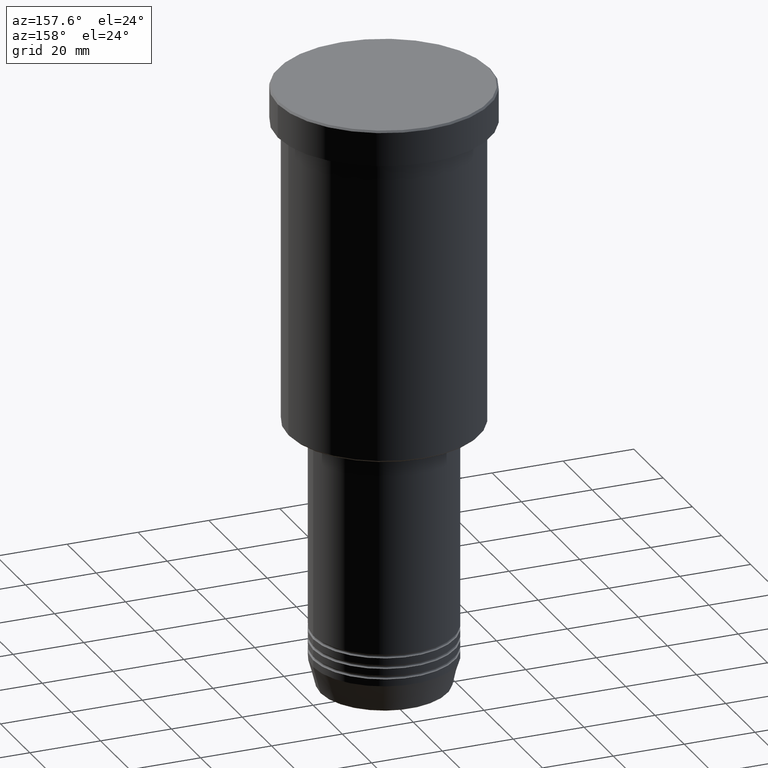
[diagram: clean part render]
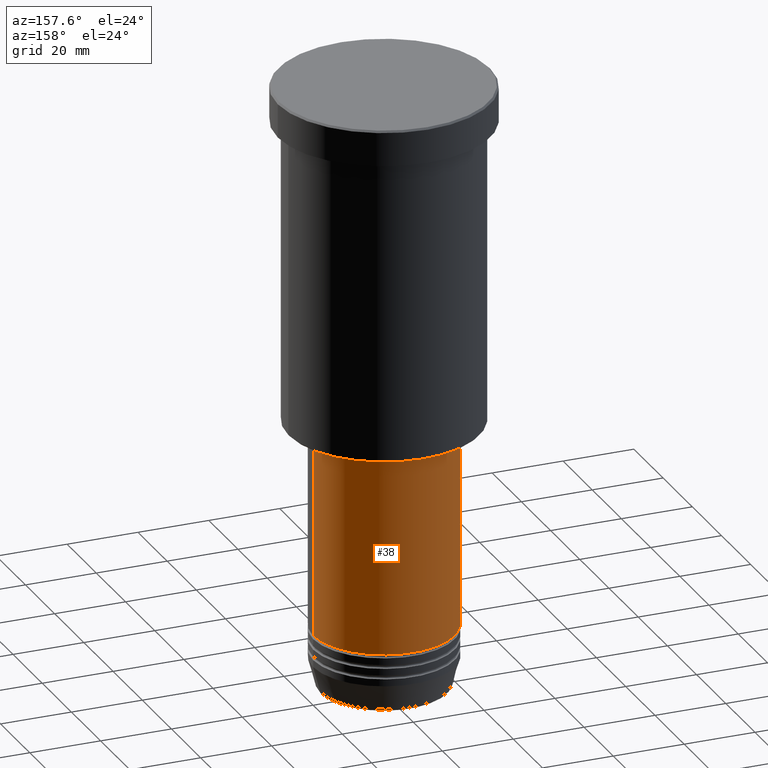
[diagram: same view with one face highlighted and labeled with its STEP entity id]
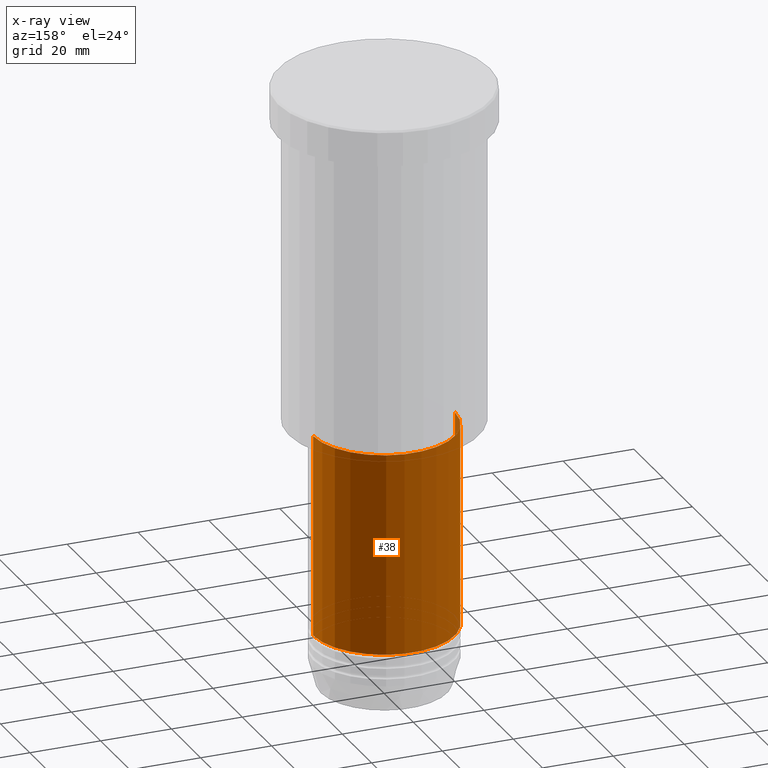
[diagram: x-ray of the same camera — body ghosted, the highlighted face saturated]
A machine part, auxiliary view. The second image highlights one B-rep face of the part: STEP entity #38.
The next image is the same camera in x-ray: the body ghosted, the highlighted face saturated — about 0% of this face is hidden behind the body in this view.
In plain terms, the highlighted cylindrical surface (partial cylindrical patch) has radius 20 mm, axis along (-0, -0, 1).
Its self-contained STEP definition (entity closure, byte-faithful):
#38 = ADVANCED_FACE ( 'NONE', ( #49 ), #608, .T. ) ;
#49 = FACE_OUTER_BOUND ( 'NONE', #922, .T. ) ;
#57 = CARTESIAN_POINT ( 'NONE',  ( 20.00000000000000000, 0.000000000000000000, 0.000000000000000000 ) ) ;
#69 = LINE ( 'NONE', #793, #227 ) ;
#75 = DIRECTION ( 'NONE',  ( -0.000000000000000000, -0.000000000000000000, 1.000000000000000000 ) ) ;
#122 = VERTEX_POINT ( 'NONE', #1055 ) ;
#139 = ORIENTED_EDGE ( 'NONE', *, *, #1056, .T. ) ;
#148 = AXIS2_PLACEMENT_3D ( 'NONE', #489, #1043, #782 ) ;
#175 = DIRECTION ( 'NONE',  ( 1.000000000000000000, 0.000000000000000000, 0.000000000000000000 ) ) ;
#227 = VECTOR ( 'NONE', #714, 1000.000000000000000 ) ;
#385 = CARTESIAN_POINT ( 'NONE',  ( -20.00000000000000000, 2.449293598294706513E-15, -97.00000000000000000 ) ) ;
#410 = ORIENTED_EDGE ( 'NONE', *, *, #1047, .F. ) ;
#416 = EDGE_CURVE ( 'NONE', #122, #802, #1058, .T. ) ;
#489 = CARTESIAN_POINT ( 'NONE',  ( 0.000000000000000000, 0.000000000000000000, -97.00000000000000000 ) ) ;
#490 = CARTESIAN_POINT ( 'NONE',  ( 20.00000000000000000, 0.000000000000000000, -153.9999999999999716 ) ) ;
#531 = DIRECTION ( 'NONE',  ( -0.000000000000000000, -0.000000000000000000, 1.000000000000000000 ) ) ;
#539 = AXIS2_PLACEMENT_3D ( 'NONE', #949, #531, #1064 ) ;
#608 = CYLINDRICAL_SURFACE ( 'NONE', #539, 20.00000000000000000 ) ;
#616 = LINE ( 'NONE', #57, #1100 ) ;
#648 = AXIS2_PLACEMENT_3D ( 'NONE', #1063, #879, #175 ) ;
#714 = DIRECTION ( 'NONE',  ( -0.000000000000000000, -0.000000000000000000, 1.000000000000000000 ) ) ;
#782 = DIRECTION ( 'NONE',  ( 1.000000000000000000, 0.000000000000000000, 0.000000000000000000 ) ) ;
#793 = CARTESIAN_POINT ( 'NONE',  ( -20.00000000000000000, 2.449293598294706513E-15, 0.000000000000000000 ) ) ;
#802 = VERTEX_POINT ( 'NONE', #385 ) ;
#840 = ORIENTED_EDGE ( 'NONE', *, *, #1139, .T. ) ;
#879 = DIRECTION ( 'NONE',  ( -0.000000000000000000, -0.000000000000000000, 1.000000000000000000 ) ) ;
#916 = VERTEX_POINT ( 'NONE', #490 ) ;
#922 = EDGE_LOOP ( 'NONE', ( #139, #840, #1070, #410 ) ) ;
#949 = CARTESIAN_POINT ( 'NONE',  ( 0.000000000000000000, 0.000000000000000000, 0.000000000000000000 ) ) ;
#1043 = DIRECTION ( 'NONE',  ( -0.000000000000000000, -0.000000000000000000, 1.000000000000000000 ) ) ;
#1047 = EDGE_CURVE ( 'NONE', #916, #122, #616, .T. ) ;
#1055 = CARTESIAN_POINT ( 'NONE',  ( 20.00000000000000000, 0.000000000000000000, -97.00000000000000000 ) ) ;
#1056 = EDGE_CURVE ( 'NONE', #916, #1148, #1081, .T. ) ;
#1058 = CIRCLE ( 'NONE', #148, 20.00000000000000000 ) ;
#1063 = CARTESIAN_POINT ( 'NONE',  ( 0.000000000000000000, 0.000000000000000000, -153.9999999999999716 ) ) ;
#1064 = DIRECTION ( 'NONE',  ( 1.000000000000000000, 0.000000000000000000, 0.000000000000000000 ) ) ;
#1070 = ORIENTED_EDGE ( 'NONE', *, *, #416, .F. ) ;
#1081 = CIRCLE ( 'NONE', #648, 20.00000000000000000 ) ;
#1100 = VECTOR ( 'NONE', #75, 1000.000000000000000 ) ;
#1139 = EDGE_CURVE ( 'NONE', #1148, #802, #69, .T. ) ;
#1148 = VERTEX_POINT ( 'NONE', #1161 ) ;
#1161 = CARTESIAN_POINT ( 'NONE',  ( -20.00000000000000000, 2.449293598294706513E-15, -153.9999999999999716 ) ) ;